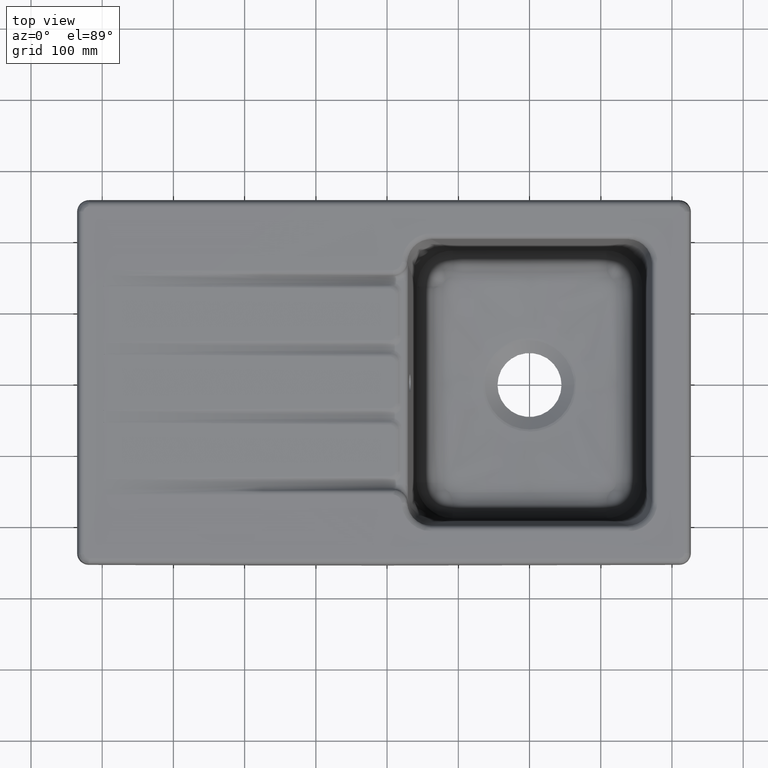
[diagram: clean part render]
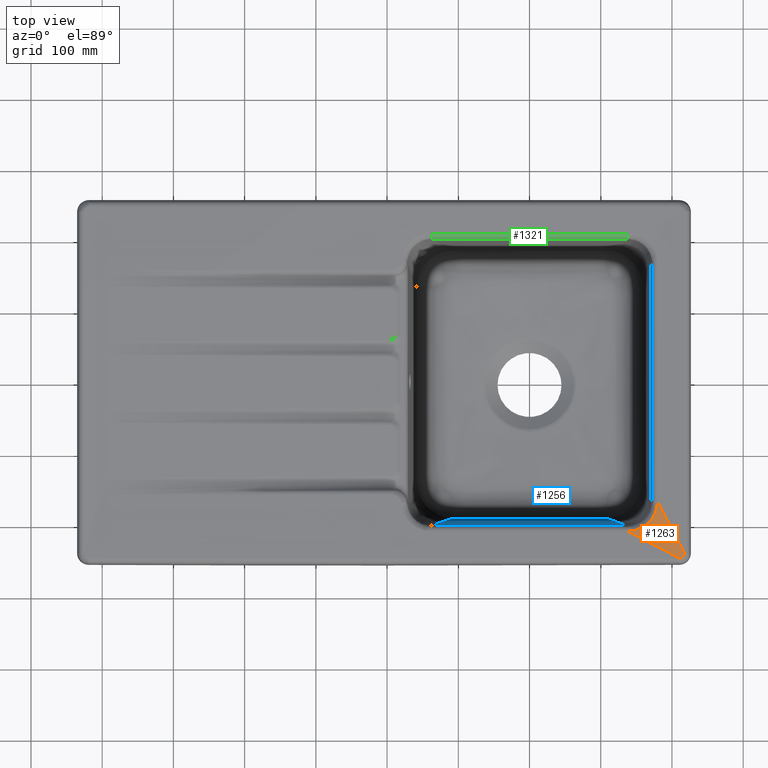
[diagram: same view with three faces highlighted in distinct colors, each labeled with its STEP entity id]
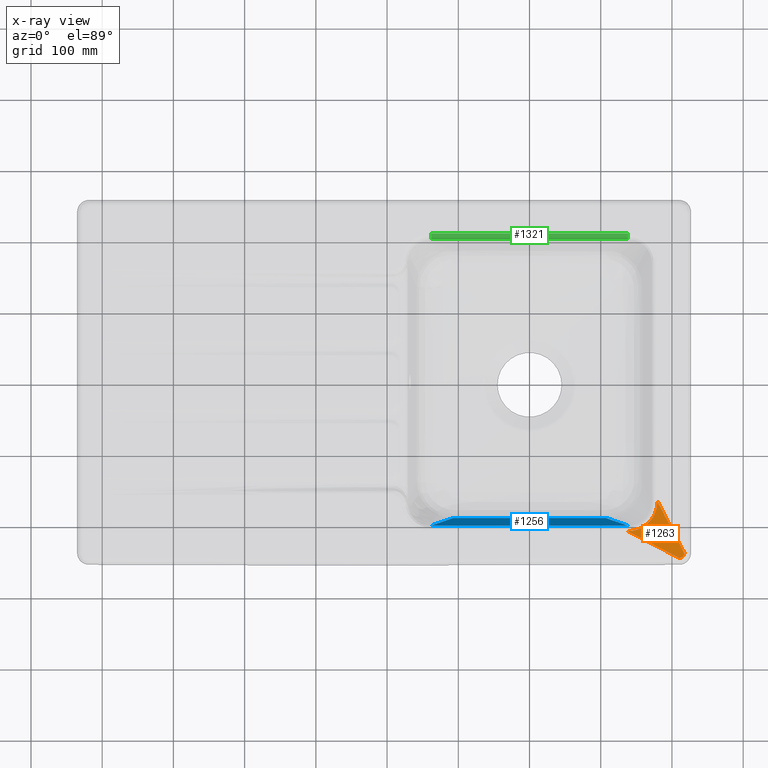
[diagram: x-ray of the same camera — body ghosted, the three highlighted faces saturated]
A machine part, top view with three faces highlighted in distinct colors.
The next image is the same camera in x-ray (body ghosted, the three faces saturated) — at least one of them is partly hidden behind the body in this view.
Their STEP definitions:

[orange] entity #1263 — the highlighted face is a freeform B-spline surface patch.
#417=B_SPLINE_SURFACE_WITH_KNOTS('',3,3,((#9427,#9428,#9429,#9430,#9431,
#9432,#9433),(#9434,#9435,#9436,#9437,#9438,#9439,#9440),(#9441,#9442,#9443,
#9444,#9445,#9446,#9447),(#9448,#9449,#9450,#9451,#9452,#9453,#9454)),
 .UNSPECIFIED.,.F.,.F.,.F.,(4,4),(4,1,1,1,4),(0.,1.),(0.,0.25,0.5,0.75,
1.),.UNSPECIFIED.);
#464=FACE_OUTER_BOUND('',#1743,.T.);
#875=B_SPLINE_CURVE_WITH_KNOTS('',3,(#8629,#8630,#8631,#8632,#8633,#8634,
#8635,#8636,#8637,#8638,#8639,#8640,#8641,#8642,#8643,#8644,#8645,#8646,
#8647,#8648,#8649,#8650,#8651,#8652,#8653,#8654,#8655,#8656,#8657,#8658,
#8659,#8660,#8661,#8662,#8663,#8664,#8665,#8666,#8667,#8668,#8669,#8670,
#8671,#8672,#8673,#8674,#8675,#8676,#8677,#8678,#8679,#8680,#8681,#8682,
#8683,#8684,#8685,#8686,#8687,#8688,#8689,#8690,#8691,#8692,#8693,#8694,
#8695,#8696,#8697,#8698,#8699,#8700,#8701,#8702,#8703,#8704,#8705,#8706,
#8707,#8708,#8709,#8710,#8711,#8712,#8713,#8714,#8715,#8716),
 .UNSPECIFIED.,.F.,.F.,(4,2,2,2,2,2,2,1,1,2,2,2,2,1,2,2,2,2,1,2,2,2,2,2,
2,2,2,2,2,2,2,2,2,2,2,2,2,2,2,2,2,2,2,2,1,1,4),(0.,0.031249999999999,0.062499999999998,
0.093749999999997,0.124999999999996,0.140624999999996,0.156249999999995,
0.187499999999994,0.203124999999995,0.210937499999994,0.218749999999994,
0.234374999999994,0.242187499999994,0.246093749999993,0.248046874999993,
0.249999999999993,0.281249999999993,0.289062499999993,0.296874999999992,
0.312499999999993,0.374999999999992,0.40624999999999,0.42187499999999,0.42968749999999,
0.437499999999989,0.468749999999988,0.484374999999988,0.492187499999988,
0.499999999999988,0.531249999999988,0.546874999999987,0.562499999999987,
0.624999999999991,0.687499999999995,0.718749999999997,0.734374999999998,
0.749999999999999,0.781250000000002,0.789062500000003,0.796875000000004,
0.812500000000006,0.875000000000012,0.890625000000014,0.898437500000013,
0.906250000000012,0.937500000000008,1.),.UNSPECIFIED.);
#887=B_SPLINE_CURVE_WITH_KNOTS('',3,(#9412,#9413,#9414,#9415),
 .UNSPECIFIED.,.F.,.F.,(4,4),(0.,1.),.UNSPECIFIED.);
#888=B_SPLINE_CURVE_WITH_KNOTS('',1,(#9417,#9418),.UNSPECIFIED.,.F.,.F.,
(2,2),(0.,1.),.UNSPECIFIED.);
#889=B_SPLINE_CURVE_WITH_KNOTS('',3,(#9420,#9421,#9422,#9423,#9424,#9425,
#9426),.UNSPECIFIED.,.F.,.F.,(4,1,1,1,4),(0.,0.25,0.5,0.75,1.),
 .UNSPECIFIED.);
#1263=ADVANCED_FACE('',(#464),#417,.T.);
#1743=EDGE_LOOP('',(#2104,#2105,#2106,#2107));
#2104=ORIENTED_EDGE('',*,*,#3912,.F.);
#2105=ORIENTED_EDGE('',*,*,#3897,.T.);
#2106=ORIENTED_EDGE('',*,*,#3913,.F.);
#2107=ORIENTED_EDGE('',*,*,#3914,.F.);
#3470=VERTEX_POINT('',#8628);
#3471=VERTEX_POINT('',#8717);
#3478=VERTEX_POINT('',#9416);
#3479=VERTEX_POINT('',#9419);
#3897=EDGE_CURVE('',#3471,#3470,#875,.T.);
#3912=EDGE_CURVE('',#3471,#3478,#887,.T.);
#3913=EDGE_CURVE('',#3479,#3470,#888,.T.);
#3914=EDGE_CURVE('',#3478,#3479,#889,.T.);
#8628=CARTESIAN_POINT('',(138.018857041035,-209.143926301324,210.627406652998));
#8629=CARTESIAN_POINT('',(179.670240335786,-167.492542868775,210.627406652998));
#8630=CARTESIAN_POINT('',(179.670240336276,-167.90093189708,210.627406653013));
#8631=CARTESIAN_POINT('',(179.666594004331,-168.551998000273,210.627409534302));
#8632=CARTESIAN_POINT('',(179.585428752954,-170.336641712221,210.627421059431));
#8633=CARTESIAN_POINT('',(179.523834372209,-171.086488515129,210.627426094326));
#8634=CARTESIAN_POINT('',(179.405304607968,-172.287951020896,210.627431656717));
#8635=CARTESIAN_POINT('',(179.347216070784,-172.778413486676,210.627432834496));
#8636=CARTESIAN_POINT('',(179.174470334719,-174.013127215959,210.627434192181));
#8637=CARTESIAN_POINT('',(179.065629487849,-174.692861550454,210.627434074365));
#8638=CARTESIAN_POINT('',(178.854820948525,-175.802477176691,210.627432702651));
#8639=CARTESIAN_POINT('',(178.776600927087,-176.187333043408,210.627432046248));
#8640=CARTESIAN_POINT('',(178.601645069127,-176.986160765972,210.627430335114));
#8641=CARTESIAN_POINT('',(178.532064299472,-177.282173053974,210.62742955439));
#8642=CARTESIAN_POINT('',(178.287896556117,-178.277165736467,210.627426526036));
#8643=CARTESIAN_POINT('',(178.019518468229,-179.266071489356,210.627422602463));
#8644=CARTESIAN_POINT('',(177.664271908151,-180.407032243985,210.627416458328));
#8645=CARTESIAN_POINT('',(177.503018066763,-180.893054398336,210.62741348942));
#8646=CARTESIAN_POINT('',(177.393517034666,-181.216386029145,210.627411435546));
#8647=CARTESIAN_POINT('',(177.356794731687,-181.322268360721,210.627410695882));
#8648=CARTESIAN_POINT('',(177.245763693013,-181.640347334898,210.627409298311));
#8649=CARTESIAN_POINT('',(177.147494110226,-181.917097068845,210.627408746125));
#8650=CARTESIAN_POINT('',(176.95751069408,-182.426926457735,210.627408487141));
#8651=CARTESIAN_POINT('',(176.887056215338,-182.612640329593,210.627408495695));
#8652=CARTESIAN_POINT('',(176.769639014241,-182.91443853634,210.62740865085));
#8653=CARTESIAN_POINT('',(176.707993747268,-183.071142943054,210.627408764008));
#8654=CARTESIAN_POINT('',(176.64172227855,-183.236460026361,210.627408930537));
#8655=CARTESIAN_POINT('',(176.596486944817,-183.348573650768,210.627409053417));
#8656=CARTESIAN_POINT('',(176.559827436642,-183.438649441939,210.627409162612));
#8657=CARTESIAN_POINT('',(176.386927892469,-183.861699332454,210.627409697693));
#8658=CARTESIAN_POINT('',(176.136467391655,-184.461833748462,210.627412482594));
#8659=CARTESIAN_POINT('',(175.678401650794,-185.448110227771,210.627418815337));
#8660=CARTESIAN_POINT('',(175.585440259714,-185.643687422016,210.627420168243));
#8661=CARTESIAN_POINT('',(175.440060524346,-185.945154800742,210.62742213023));
#8662=CARTESIAN_POINT('',(175.219022068017,-186.396455097419,210.627424919275));
#8663=CARTESIAN_POINT('',(174.989087751472,-186.844934522298,210.627427246519));
#8664=CARTESIAN_POINT('',(174.202923743268,-188.333060573026,210.62743397777));
#8665=CARTESIAN_POINT('',(173.510879602852,-189.501827304892,210.627436078842));
#8666=CARTESIAN_POINT('',(172.379396060281,-191.21155663083,210.627434304559));
#8667=CARTESIAN_POINT('',(171.986669480756,-191.774221010893,210.62743289215));
#8668=CARTESIAN_POINT('',(171.374426228196,-192.605918207092,210.627429542062));
#8669=CARTESIAN_POINT('',(171.166486516423,-192.881100155012,210.627428220121));
#8670=CARTESIAN_POINT('',(170.848815798611,-193.290613448684,210.62742592934));
#8671=CARTESIAN_POINT('',(170.773812371285,-193.386944509497,210.627425348705));
#8672=CARTESIAN_POINT('',(170.445563367257,-193.79841696245,210.627422769986));
#8673=CARTESIAN_POINT('',(170.285959338548,-193.99445264794,210.627421552258));
#8674=CARTESIAN_POINT('',(169.51288288732,-194.927759019587,210.627415821774));
#8675=CARTESIAN_POINT('',(168.97510535917,-195.524796663479,210.627412383483));
#8676=CARTESIAN_POINT('',(168.323651080448,-196.223312570799,210.627408945192));
#8677=CARTESIAN_POINT('',(168.132195367886,-196.423234803328,210.627408085619));
#8678=CARTESIAN_POINT('',(167.886373606394,-196.676311140827,210.627407226047));
#8679=CARTESIAN_POINT('',(167.811317086369,-196.752861939087,210.627407011153));
#8680=CARTESIAN_POINT('',(167.675330122163,-196.890688751914,210.627406724629));
#8681=CARTESIAN_POINT('',(167.647881933372,-196.918448999757,210.627406652998));
#8682=CARTESIAN_POINT('',(167.211847904662,-197.354919930549,210.627406652998));
#8683=CARTESIAN_POINT('',(166.742455429258,-197.813708201409,210.627408805736));
#8684=CARTESIAN_POINT('',(165.833995597966,-198.640025726617,210.627415263951));
#8685=CARTESIAN_POINT('',(165.422245242467,-199.002203724996,210.627418478398));
#8686=CARTESIAN_POINT('',(164.796354543602,-199.534381069848,210.627423028036));
#8687=CARTESIAN_POINT('',(164.542995799309,-199.742030416207,210.627424786468));
#8688=CARTESIAN_POINT('',(163.593634185839,-200.510796563078,210.627430996694));
#8689=CARTESIAN_POINT('',(162.375585033977,-201.427987362736,210.627435459472));
#8690=CARTESIAN_POINT('',(160.097187190432,-202.941982510233,210.627435894229));
#8691=CARTESIAN_POINT('',(158.929951064584,-203.636532304508,210.627432152059));
#8692=CARTESIAN_POINT('',(157.124086991884,-204.59409294931,210.627423398538));
#8693=CARTESIAN_POINT('',(156.514257919319,-204.898433679662,210.627420286522));
#8694=CARTESIAN_POINT('',(155.588785737434,-205.332013604844,210.627415327233));
#8695=CARTESIAN_POINT('',(155.242142904908,-205.488408026127,210.627413298405));
#8696=CARTESIAN_POINT('',(154.749727173821,-205.704872663238,210.627410848118));
#8697=CARTESIAN_POINT('',(154.481900415008,-205.819817809612,210.627410018104));
#8698=CARTESIAN_POINT('',(153.612053232603,-206.180717712998,210.627408713453));
#8699=CARTESIAN_POINT('',(152.943644528148,-206.442921489934,210.627409424206));
#8700=CARTESIAN_POINT('',(151.992367437856,-206.781048641793,210.627412288297));
#8701=CARTESIAN_POINT('',(151.767797852957,-206.859488259781,210.627413085551));
#8702=CARTESIAN_POINT('',(151.216945825705,-207.044468703694,210.627414991001));
#8703=CARTESIAN_POINT('',(150.949361383577,-207.131117335649,210.62741590902));
#8704=CARTESIAN_POINT('',(150.170826437628,-207.375129904735,210.627418558957));
#8705=CARTESIAN_POINT('',(149.684122280317,-207.516594176942,210.627420186755));
#8706=CARTESIAN_POINT('',(147.419578973177,-208.137081991955,210.627427631614));
#8707=CARTESIAN_POINT('',(146.153922330914,-208.366783363095,210.627431366281));
#8708=CARTESIAN_POINT('',(145.306043751292,-208.517816357814,210.627433258089));
#8709=CARTESIAN_POINT('',(145.172894616106,-208.540514657861,210.627433497624));
#8710=CARTESIAN_POINT('',(145.028093854023,-208.564869723063,210.627433648687));
#8711=CARTESIAN_POINT('',(144.844163180765,-208.59548781312,210.627433764137));
#8712=CARTESIAN_POINT('',(144.505830843945,-208.649047999114,210.627433842159));
#8713=CARTESIAN_POINT('',(143.659148374329,-208.777823287163,210.627433754457));
#8714=CARTESIAN_POINT('',(141.447522314754,-209.045921459549,210.627429850588));
#8715=CARTESIAN_POINT('',(139.390570871642,-209.144789007762,210.627418103609));
#8716=CARTESIAN_POINT('',(138.018856868775,-209.143926335786,210.627406652998));
#8717=CARTESIAN_POINT('',(179.670240376121,-167.492543045042,210.627406653008));
#9412=CARTESIAN_POINT('',(179.670240340273,-167.492543065079,210.627406653058));
#9413=CARTESIAN_POINT('',(192.215490226876,-191.590335376771,210.793924653038));
#9414=CARTESIAN_POINT('',(204.760740113417,-215.688127688345,210.960442653018));
#9415=CARTESIAN_POINT('',(217.30599,-239.78592,211.126960652998));
#9416=CARTESIAN_POINT('',(217.30599,-239.785919985446,211.126960652998));
#9417=CARTESIAN_POINT('',(217.786934980049,-250.670986475471,211.178611536283));
#9418=CARTESIAN_POINT('',(138.0188570841,-209.143926335786,210.627406652998));
#9419=CARTESIAN_POINT('',(210.312234000035,-246.779676000018,211.126960652998));
#9420=CARTESIAN_POINT('',(217.30599,-239.78592,211.126960652998));
#9421=CARTESIAN_POINT('',(217.30599,-240.701368574897,211.126960652998));
#9422=CARTESIAN_POINT('',(216.941784255661,-242.531966396596,211.126960652998));
#9423=CARTESIAN_POINT('',(215.386333277281,-244.860019277282,211.126960652998));
#9424=CARTESIAN_POINT('',(213.058280396598,-246.41547025566,211.126960652998));
#9425=CARTESIAN_POINT('',(211.227682574897,-246.779676,211.126960652998));
#9426=CARTESIAN_POINT('',(210.312234,-246.779676,211.126960652998));
#9427=CARTESIAN_POINT('',(217.30599,-239.78592,211.126960652998));
#9428=CARTESIAN_POINT('',(217.30599,-240.701368574897,211.126960652998));
#9429=CARTESIAN_POINT('',(216.941784255661,-242.531966396596,211.126960652998));
#9430=CARTESIAN_POINT('',(215.386333277281,-244.860019277282,211.126960652998));
#9431=CARTESIAN_POINT('',(213.058280396598,-246.41547025566,211.126960652998));
#9432=CARTESIAN_POINT('',(211.227682574897,-246.779676,211.126960652998));
#9433=CARTESIAN_POINT('',(210.312234,-246.779676,211.126960652998));
#9434=CARTESIAN_POINT('',(204.760740111929,-215.688127622925,210.960442652998));
#9435=CARTESIAN_POINT('',(204.7607401092,-218.118191352751,210.960442652998));
#9436=CARTESIAN_POINT('',(203.813988195296,-222.980121204855,210.960442652998));
#9437=CARTESIAN_POINT('',(199.700646865474,-229.174332009362,210.960442652998));
#9438=CARTESIAN_POINT('',(193.506433387074,-233.287667000677,210.960442652998));
#9439=CARTESIAN_POINT('',(188.644505352752,-234.234426108998,210.960442652998));
#9440=CARTESIAN_POINT('',(186.214441622925,-234.234426111929,210.960442652998));
#9441=CARTESIAN_POINT('',(192.215490223858,-191.59033524585,210.793924652998));
#9442=CARTESIAN_POINT('',(192.2154902184,-195.535014130606,210.793924652998));
#9443=CARTESIAN_POINT('',(190.686192134931,-203.428276013113,210.793924652998));
#9444=CARTESIAN_POINT('',(184.014960453667,-213.488644741442,210.793924652998));
#9445=CARTESIAN_POINT('',(173.954586377551,-220.159863745694,210.793924652998));
#9446=CARTESIAN_POINT('',(166.061328130606,-221.689176217996,210.793924652998));
#9447=CARTESIAN_POINT('',(162.11664924585,-221.689176223858,210.793924652998));
#9448=CARTESIAN_POINT('',(179.670240335786,-167.492542868775,210.627406652998));
#9449=CARTESIAN_POINT('',(179.670240327601,-172.95183690846,210.627406652998));
#9450=CARTESIAN_POINT('',(177.558396074565,-183.876430821371,210.627406652998));
#9451=CARTESIAN_POINT('',(168.32927404186,-197.802957473522,210.627406652998));
#9452=CARTESIAN_POINT('',(154.402739368027,-207.03206049071,210.627406652998));
#9453=CARTESIAN_POINT('',(143.47815090846,-209.143926326994,210.627406652998));
#9454=CARTESIAN_POINT('',(138.018856868775,-209.143926335786,210.627406652998));

[blue] entity #1256 — the highlighted planar face has unit normal (-0, -0.9962, -0.0872).
#130=PLANE('',#4634);
#182=LINE('',#8824,#296);
#296=VECTOR('',#4931,1.);
#457=FACE_OUTER_BOUND('',#1736,.T.);
#865=B_SPLINE_CURVE_WITH_KNOTS('',3,(#6951,#6952,#6953,#6954,#6955,#6956,
#6957,#6958),.UNSPECIFIED.,.F.,.F.,(4,2,2,4),(0.,0.151517593064763,0.852907961603614,
1.),.UNSPECIFIED.);
#868=B_SPLINE_CURVE_WITH_KNOTS('',3,(#7066,#7067,#7068,#7069,#7070,#7071,
#7072,#7073,#7074,#7075,#7076,#7077),.UNSPECIFIED.,.F.,.F.,(4,1,1,1,1,1,
1,1,1,4),(0.,0.0625,0.125,0.25,0.375,0.5,0.625,0.75,0.875,1.),
 .UNSPECIFIED.);
#877=B_SPLINE_CURVE_WITH_KNOTS('',3,(#8815,#8816,#8817,#8818,#8819,#8820,
#8821,#8822),.UNSPECIFIED.,.F.,.F.,(4,2,2,4),(0.,0.151517593064763,0.852907961603613,
1.),.UNSPECIFIED.);
#1256=ADVANCED_FACE('',(#457),#130,.F.);
#1736=EDGE_LOOP('',(#2076,#2077,#2078,#2079));
#2076=ORIENTED_EDGE('',*,*,#3886,.T.);
#2077=ORIENTED_EDGE('',*,*,#3899,.F.);
#2078=ORIENTED_EDGE('',*,*,#3900,.F.);
#2079=ORIENTED_EDGE('',*,*,#3882,.T.);
#3455=VERTEX_POINT('',#6048);
#3461=VERTEX_POINT('',#6959);
#3463=VERTEX_POINT('',#7065);
#3472=VERTEX_POINT('',#8823);
#3882=EDGE_CURVE('',#3461,#3455,#865,.T.);
#3886=EDGE_CURVE('',#3455,#3463,#868,.T.);
#3899=EDGE_CURVE('',#3472,#3463,#877,.T.);
#3900=EDGE_CURVE('',#3461,#3472,#182,.T.);
#4634=AXIS2_PLACEMENT_3D('',#8825,#4932,#4933);
#4931=DIRECTION('',(-1.,4.82705662880503E-16,6.16297582203915E-33));
#4932=DIRECTION('',(-4.80868822100418E-16,-0.996194698091746,-0.0871557427476584));
#4933=DIRECTION('',(0.,-0.0871557427476583,0.996194698091746));
#6048=CARTESIAN_POINT('',(107.599208392164,-188.080415099314,53.585335749553));
#6951=CARTESIAN_POINT('',(147.809562345788,-205.398115583646,251.527558049014));
#6952=CARTESIAN_POINT('',(145.040051213893,-204.205349055764,237.894174250342));
#6953=CARTESIAN_POINT('',(142.270540081999,-203.012582527882,224.26079045167));
#6954=CARTESIAN_POINT('',(126.680679879214,-196.298378273529,147.517084652998));
#6955=CARTESIAN_POINT('',(113.860330808322,-190.776940547059,84.4067626529981));
#6956=CARTESIAN_POINT('',(98.3513630132822,-184.09757484425,8.06126332062199));
#6957=CARTESIAN_POINT('',(95.6627442891341,-182.939646867912,-5.17391401175404));
#6958=CARTESIAN_POINT('',(92.9741255649861,-181.781718891573,-18.4090913441301));
#6959=CARTESIAN_POINT('',(138.0188570841,-201.181477713513,203.3311666516));
#7065=CARTESIAN_POINT('',(-107.59482975256,-188.07852965453,53.5637850170526));
#7066=CARTESIAN_POINT('',(107.599208392164,-188.080415099314,53.585335749553));
#7067=CARTESIAN_POINT('',(103.115999262581,-188.080375812861,53.584886703334));
#7068=CARTESIAN_POINT('',(94.1495810034147,-188.080297239953,53.5839886108962));
#7069=CARTESIAN_POINT('',(76.2167444850827,-188.080140094139,53.5821924260206));
#7070=CARTESIAN_POINT('',(53.8006988371636,-188.079943661871,53.5799471949266));
#7071=CARTESIAN_POINT('',(26.9014440596694,-188.07970794315,53.5772529176141));
#7072=CARTESIAN_POINT('',(0.00218928216859061,-188.079472224429,53.5745586403018));
#7073=CARTESIAN_POINT('',(-26.8970654953296,-188.079236505708,53.5718643629894));
#7074=CARTESIAN_POINT('',(-53.7963202728302,-188.079000786987,53.569170085677));
#7075=CARTESIAN_POINT('',(-80.6955750503288,-188.078765068266,53.5664758083642));
#7076=CARTESIAN_POINT('',(-98.6284115686617,-188.078607922451,53.5646796234887));
#7077=CARTESIAN_POINT('',(-107.594829827828,-188.078529349544,53.5637815310507));
#8815=CARTESIAN_POINT('',(-147.809562345787,-205.398115583645,251.527558049014));
#8816=CARTESIAN_POINT('',(-145.040051213893,-204.205349055764,237.894174250342));
#8817=CARTESIAN_POINT('',(-142.270540081999,-203.012582527882,224.26079045167));
#8818=CARTESIAN_POINT('',(-126.680679879214,-196.298378273529,147.517084652998));
#8819=CARTESIAN_POINT('',(-113.860330808322,-190.776940547058,84.4067626529981));
#8820=CARTESIAN_POINT('',(-98.3513630132821,-184.09757484425,8.06126332062197));
#8821=CARTESIAN_POINT('',(-95.662744289134,-182.939646867911,-5.17391401175415));
#8822=CARTESIAN_POINT('',(-92.9741255649859,-181.781718891573,-18.4090913441302));
#8823=CARTESIAN_POINT('',(-138.0188570841,-201.181477713513,203.331166651599));
#8824=CARTESIAN_POINT('',(-139.501028950105,-201.181477713513,203.331166651599));
#8825=CARTESIAN_POINT('',(-172.34613,-201.819816,210.627406652998));

[green] entity #1321 — the highlighted cylindrical surface (edge-blend (fillet) strip) has radius 7.9929 mm, axis along (1, 0, 0).
#65=CYLINDRICAL_SURFACE('',#4697,7.99286400000001);
#188=LINE('',#9944,#302);
#302=VECTOR('',#4953,1.);
#521=FACE_OUTER_BOUND('',#1802,.T.);
#981=B_SPLINE_CURVE_WITH_KNOTS('',2,(#18128,#18129,#18130),
 .UNSPECIFIED.,.F.,.F.,(3,3),(0.,1.),.UNSPECIFIED.);
#1321=ADVANCED_FACE('',(#521),#65,.T.);
#1553=CIRCLE('',#4641,7.99286400000001);
#1554=CIRCLE('',#4643,7.99286400000001);
#1802=EDGE_LOOP('',(#2373,#2374,#2375,#2376));
#2373=ORIENTED_EDGE('',*,*,#3937,.T.);
#2374=ORIENTED_EDGE('',*,*,#3939,.T.);
#2375=ORIENTED_EDGE('',*,*,#3940,.T.);
#2376=ORIENTED_EDGE('',*,*,#4084,.F.);
#3476=VERTEX_POINT('',#9313);
#3493=VERTEX_POINT('',#9729);
#3497=VERTEX_POINT('',#9831);
#3498=VERTEX_POINT('',#9947);
#3937=EDGE_CURVE('',#3497,#3493,#1553,.T.);
#3939=EDGE_CURVE('',#3493,#3476,#188,.T.);
#3940=EDGE_CURVE('',#3476,#3498,#1554,.T.);
#4084=EDGE_CURVE('',#3497,#3498,#981,.T.);
#4641=AXIS2_PLACEMENT_3D('',#9830,#4951,#4952);
#4643=AXIS2_PLACEMENT_3D('',#9946,#4956,#4957);
#4697=AXIS2_PLACEMENT_3D('',#18131,#5074,#5075);
#4951=DIRECTION('',(1.,1.74134983783767E-15,0.));
#4952=DIRECTION('',(-3.47254446161337E-15,1.,0.));
#4953=DIRECTION('',(1.,4.82705662880503E-16,-6.16297582203915E-33));
#4956=DIRECTION('',(-1.,-2.0896198054052E-14,0.));
#4957=DIRECTION('',(-2.08352667696802E-14,1.,0.));
#5074=DIRECTION('',(1.,4.82705662880503E-16,0.));
#5075=DIRECTION('',(0.,1.,0.));
#9313=CARTESIAN_POINT('',(138.0188570841,201.181477713513,203.331166651599));
#9729=CARTESIAN_POINT('',(-138.0188570841,201.181477713513,203.331166651601));
#9830=CARTESIAN_POINT('',(-138.0188570841,209.143926452882,202.634542652998));
#9831=CARTESIAN_POINT('',(-138.018859625948,209.143939208571,210.626034905408));
#9944=CARTESIAN_POINT('',(-139.501028950105,201.181477713513,203.331166651599));
#9946=CARTESIAN_POINT('',(138.0188570841,209.143926452882,202.634542652998));
#9947=CARTESIAN_POINT('',(138.018856953092,209.143926291317,210.627406652998));
#18128=CARTESIAN_POINT('',(-138.0188570841,209.143926452881,210.627406652998));
#18129=CARTESIAN_POINT('',(-5.67927145311842E-14,209.143926364061,210.627406658935));
#18130=CARTESIAN_POINT('',(138.0188570841,209.143926275398,210.627406652998));
#18131=CARTESIAN_POINT('',(-172.34613,209.143926452881,202.634542652998));